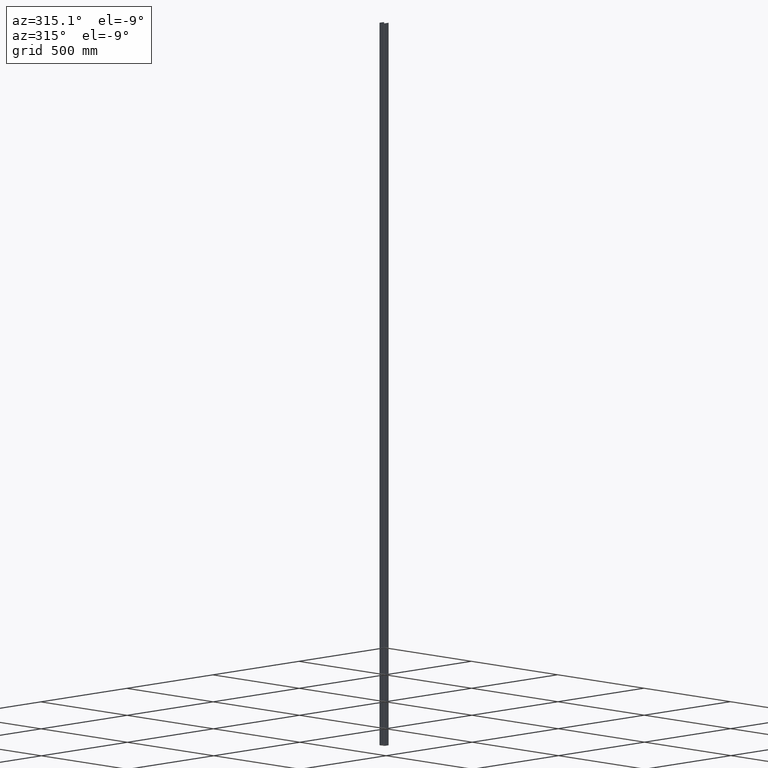
[diagram: clean part render]
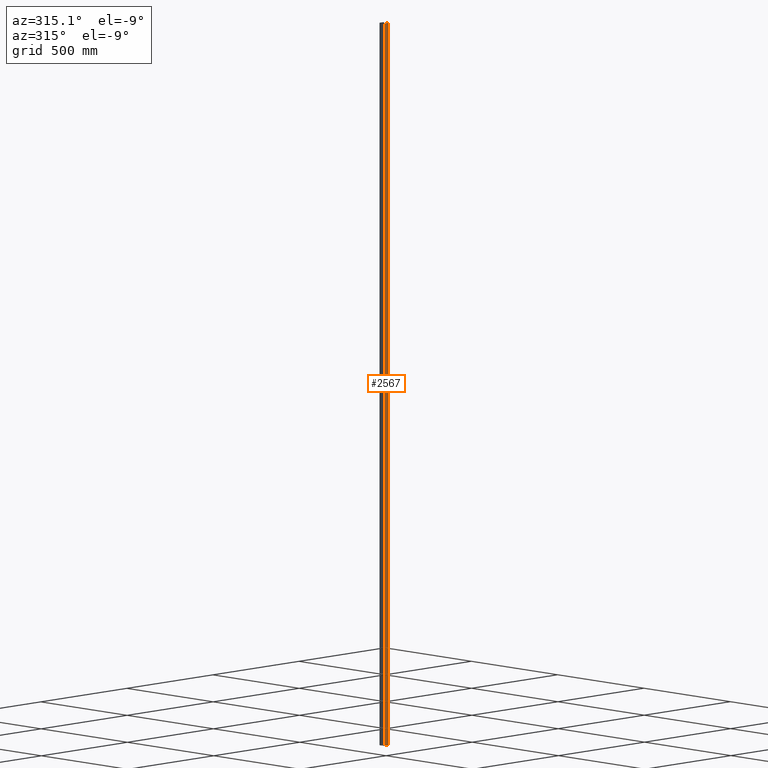
[diagram: same view with one face highlighted and labeled with its STEP entity id]
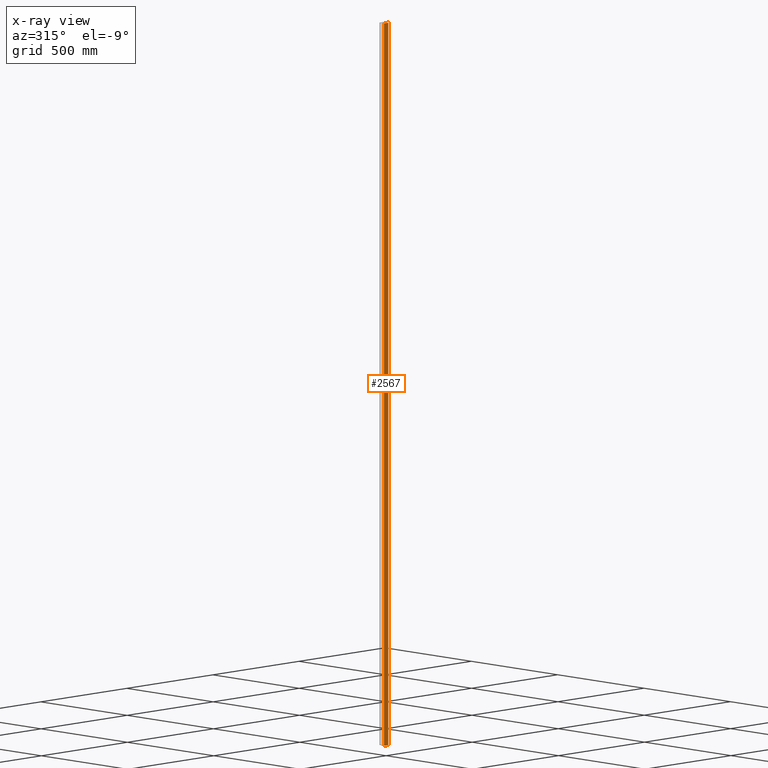
[diagram: x-ray of the same camera — body ghosted, the highlighted face saturated]
A machine part, auxiliary view. The second image highlights one B-rep face of the part: STEP entity #2567.
The next image is the same camera in x-ray: the body ghosted, the highlighted face saturated — about 0% of this face is hidden behind the body in this view.
In plain terms, the highlighted planar face has unit normal (1, 0, -0).
Its self-contained STEP definition (entity closure, byte-faithful):
#535 = LINE ( 'NONE', #5410, #2101 ) ;
#1253 = ORIENTED_EDGE ( 'NONE', *, *, #11596, .F. ) ;
#1270 = VECTOR ( 'NONE', #1591, 1000.000000000000000 ) ;
#1325 = CARTESIAN_POINT ( 'NONE',  ( 11.99999999999999822, 23.99999999999999645, 1500.000000000000000 ) ) ;
#1454 = LINE ( 'NONE', #13916, #1270 ) ;
#1591 = DIRECTION ( 'NONE',  ( 7.381802025433224012E-17, -1.000000000000000000, 0.000000000000000000 ) ) ;
#2101 = VECTOR ( 'NONE', #10981, 1000.000000000000000 ) ;
#2567 = ADVANCED_FACE ( 'NONE', ( #3436 ), #8237, .F. ) ;
#3436 = FACE_OUTER_BOUND ( 'NONE', #10012, .T. ) ;
#3565 = VECTOR ( 'NONE', #6495, 1000.000000000000000 ) ;
#3912 = ORIENTED_EDGE ( 'NONE', *, *, #11444, .T. ) ;
#4579 = VERTEX_POINT ( 'NONE', #6836 ) ;
#5410 = CARTESIAN_POINT ( 'NONE',  ( 12.00000000000000000, 0.5000000000000031086, 1500.000000000000000 ) ) ;
#6250 = CARTESIAN_POINT ( 'NONE',  ( 11.99999999999999822, 23.99999999999999645, 1500.000000000000000 ) ) ;
#6495 = DIRECTION ( 'NONE',  ( 7.381802025433224012E-17, -1.000000000000000000, 0.000000000000000000 ) ) ;
#6836 = CARTESIAN_POINT ( 'NONE',  ( 11.99999999999999822, 23.99999999999999645, -1500.000000000000000 ) ) ;
#7472 = CARTESIAN_POINT ( 'NONE',  ( 11.99999999999999822, 23.99999999999999645, 1500.000000000000000 ) ) ;
#7561 = EDGE_CURVE ( 'NONE', #10337, #4579, #10704, .T. ) ;
#7565 = VERTEX_POINT ( 'NONE', #14159 ) ;
#8237 = PLANE ( 'NONE',  #8510 ) ;
#8510 = AXIS2_PLACEMENT_3D ( 'NONE', #1325, #9181, #10478 ) ;
#9181 = DIRECTION ( 'NONE',  ( 1.000000000000000000, 7.381802025433222780E-17, -0.000000000000000000 ) ) ;
#9838 = VECTOR ( 'NONE', #13074, 1000.000000000000000 ) ;
#10012 = EDGE_LOOP ( 'NONE', ( #3912, #10852, #1253, #11889 ) ) ;
#10337 = VERTEX_POINT ( 'NONE', #6250 ) ;
#10478 = DIRECTION ( 'NONE',  ( -7.381802025433222780E-17, 1.000000000000000000, 0.000000000000000000 ) ) ;
#10695 = VERTEX_POINT ( 'NONE', #12560 ) ;
#10704 = LINE ( 'NONE', #7472, #9838 ) ;
#10852 = ORIENTED_EDGE ( 'NONE', *, *, #14014, .F. ) ;
#10953 = CARTESIAN_POINT ( 'NONE',  ( 11.99999999999999822, 23.99999999999999645, 1500.000000000000000 ) ) ;
#10981 = DIRECTION ( 'NONE',  ( -0.000000000000000000, -0.000000000000000000, -1.000000000000000000 ) ) ;
#11444 = EDGE_CURVE ( 'NONE', #4579, #10695, #1454, .T. ) ;
#11596 = EDGE_CURVE ( 'NONE', #10337, #7565, #13031, .T. ) ;
#11889 = ORIENTED_EDGE ( 'NONE', *, *, #7561, .T. ) ;
#12560 = CARTESIAN_POINT ( 'NONE',  ( 12.00000000000000000, 0.5000000000000031086, -1500.000000000000000 ) ) ;
#13031 = LINE ( 'NONE', #10953, #3565 ) ;
#13074 = DIRECTION ( 'NONE',  ( -0.000000000000000000, -0.000000000000000000, -1.000000000000000000 ) ) ;
#13916 = CARTESIAN_POINT ( 'NONE',  ( 11.99999999999999822, 23.99999999999999645, -1500.000000000000000 ) ) ;
#14014 = EDGE_CURVE ( 'NONE', #7565, #10695, #535, .T. ) ;
#14159 = CARTESIAN_POINT ( 'NONE',  ( 12.00000000000000000, 0.5000000000000031086, 1500.000000000000000 ) ) ;